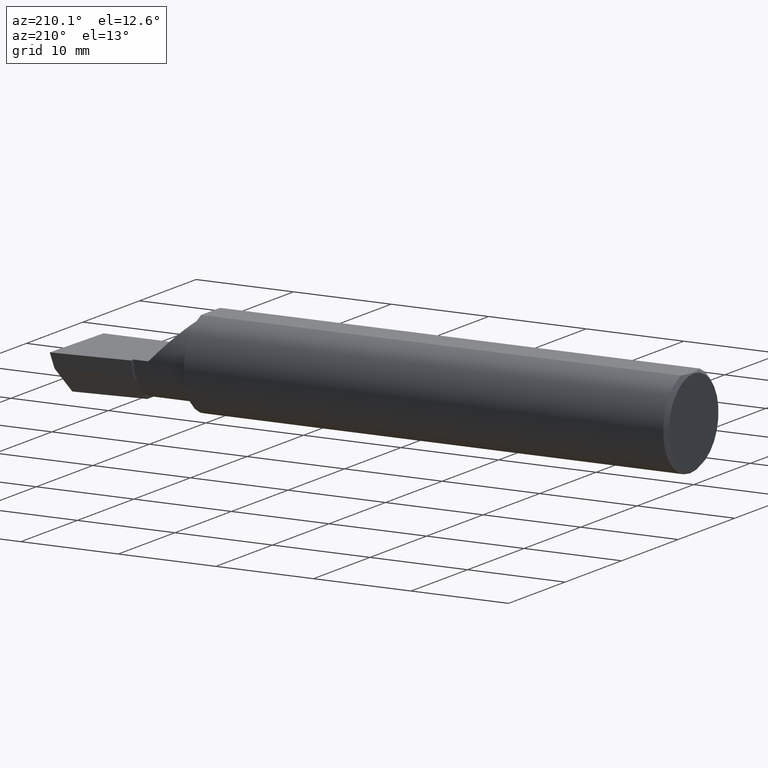
[diagram: clean part render]
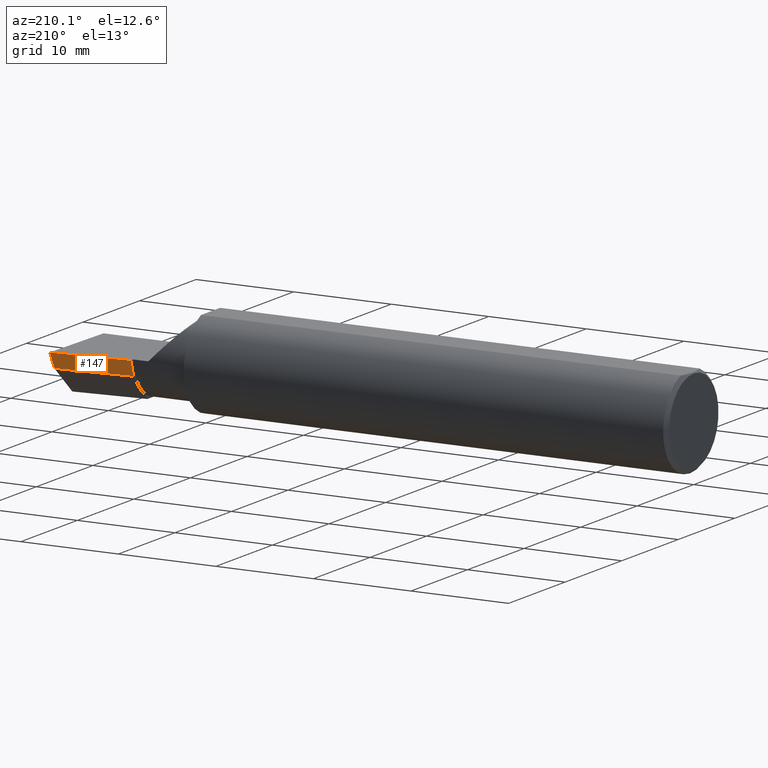
[diagram: same view with one face highlighted and labeled with its STEP entity id]
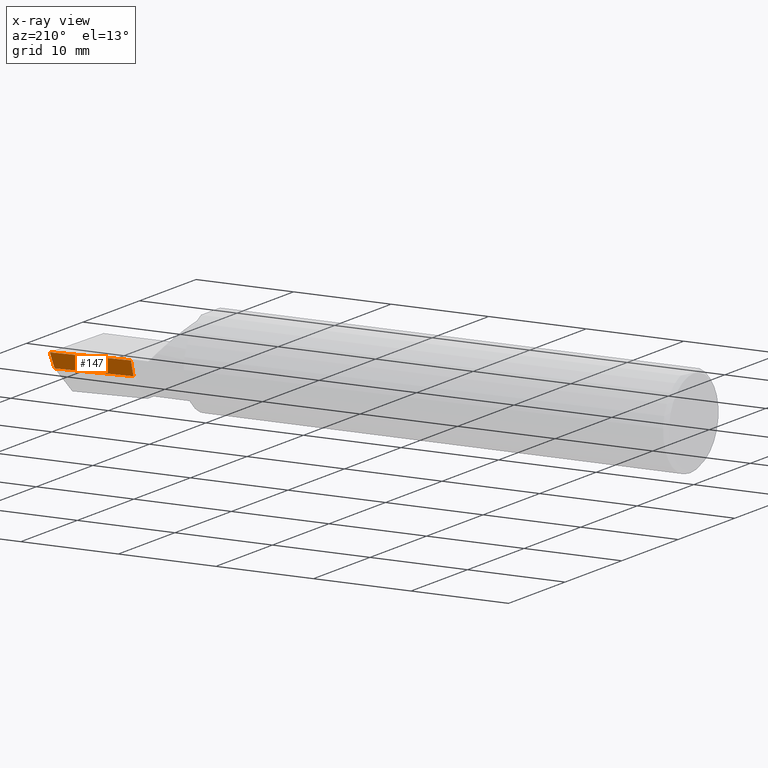
[diagram: x-ray of the same camera — body ghosted, the highlighted face saturated]
A machine part, auxiliary view. The second image highlights one B-rep face of the part: STEP entity #147.
The next image is the same camera in x-ray: the body ghosted, the highlighted face saturated — about 0% of this face is hidden behind the body in this view.
In plain terms, the highlighted planar face has unit normal (-0.0917, 0.9519, -0.2924).
Its self-contained STEP definition (entity closure, byte-faithful):
#37 = LINE ( 'NONE', #416, #441 ) ;
#60 = EDGE_CURVE ( 'NONE', #224, #432, #200, .T. ) ;
#82 = LINE ( 'NONE', #463, #552 ) ;
#87 = ORIENTED_EDGE ( 'NONE', *, *, #60, .F. ) ;
#88 = DIRECTION ( 'NONE',  ( 0.1240019227989986178, 0.3022330132596678376, 0.9451342385281217284 ) ) ;
#124 = CARTESIAN_POINT ( 'NONE',  ( 2.492127980275578913, 0.1514633278254541859, -0.05999999999999999084 ) ) ;
#134 = ORIENTED_EDGE ( 'NONE', *, *, #508, .T. ) ;
#147 = ADVANCED_FACE ( 'NONE', ( #267 ), #277, .T. ) ;
#180 = CARTESIAN_POINT ( 'NONE',  ( 2.500188977433833504, 0.1711105994646693884, 0.001440373173034959625 ) ) ;
#200 = LINE ( 'NONE', #180, #310 ) ;
#215 = VERTEX_POINT ( 'NONE', #255 ) ;
#224 = VERTEX_POINT ( 'NONE', #124 ) ;
#234 = VECTOR ( 'NONE', #348, 39.37007874015748143 ) ;
#239 = VERTEX_POINT ( 'NONE', #391 ) ;
#251 = AXIS2_PLACEMENT_3D ( 'NONE', #507, #411, #546 ) ;
#255 = CARTESIAN_POINT ( 'NONE',  ( 2.189999999999999947, 0.1408003950587674857, 3.286754617377316716E-16 ) ) ;
#260 = CARTESIAN_POINT ( 'NONE',  ( 2.500000000000034195, 0.1706500000000318595, 9.290684216734176359E-14 ) ) ;
#267 = FACE_OUTER_BOUND ( 'NONE', #526, .T. ) ;
#277 = PLANE ( 'NONE',  #251 ) ;
#280 = ORIENTED_EDGE ( 'NONE', *, *, #393, .F. ) ;
#310 = VECTOR ( 'NONE', #88, 39.37007874015748854 ) ;
#318 = ORIENTED_EDGE ( 'NONE', *, *, #505, .T. ) ;
#335 = LINE ( 'NONE', #380, #234 ) ;
#348 = DIRECTION ( 'NONE',  ( 0.9953961983671787417, 0.09584575252022456415, -1.028972571603813720E-16 ) ) ;
#380 = CARTESIAN_POINT ( 'NONE',  ( 0.3393181374772690773, -0.03739999999999999575, 2.916527262322783564E-16 ) ) ;
#391 = CARTESIAN_POINT ( 'NONE',  ( 2.189999999999999947, 0.1223717121708782080, -0.05999999999999999084 ) ) ;
#393 = EDGE_CURVE ( 'NONE', #215, #239, #82, .T. ) ;
#411 = DIRECTION ( 'NONE',  ( -0.09165774897393337561, 0.9519021185660613282, -0.2923717047227304411 ) ) ;
#416 = CARTESIAN_POINT ( 'NONE',  ( 2.511712141217646632, 0.1533490680423130470, -0.05999999999999999084 ) ) ;
#432 = VERTEX_POINT ( 'NONE', #260 ) ;
#441 = VECTOR ( 'NONE', #534, 39.37007874015748854 ) ;
#463 = CARTESIAN_POINT ( 'NONE',  ( 2.189999999999999947, 0.1375075152821363667, -0.01072093908174519099 ) ) ;
#505 = EDGE_CURVE ( 'NONE', #215, #432, #335, .T. ) ;
#507 = CARTESIAN_POINT ( 'NONE',  ( 2.509953961983671267, 0.1716084575252020683, -6.829619984160658046E-17 ) ) ;
#508 = EDGE_CURVE ( 'NONE', #224, #239, #37, .T. ) ;
#526 = EDGE_LOOP ( 'NONE', ( #87, #134, #280, #318 ) ) ;
#534 = DIRECTION ( 'NONE',  ( -0.9953961983671800740, -0.09584575252021031166, 0.0000000000000000000 ) ) ;
#546 = DIRECTION ( 'NONE',  ( 0.0000000000000000000, 0.2936076258024061802, 0.9559260233253795702 ) ) ;
#552 = VECTOR ( 'NONE', #579, 39.37007874015748143 ) ;
#579 = DIRECTION ( 'NONE',  ( -2.005228508682077821E-18, -0.2936076258024062358, -0.9559260233253795702 ) ) ;